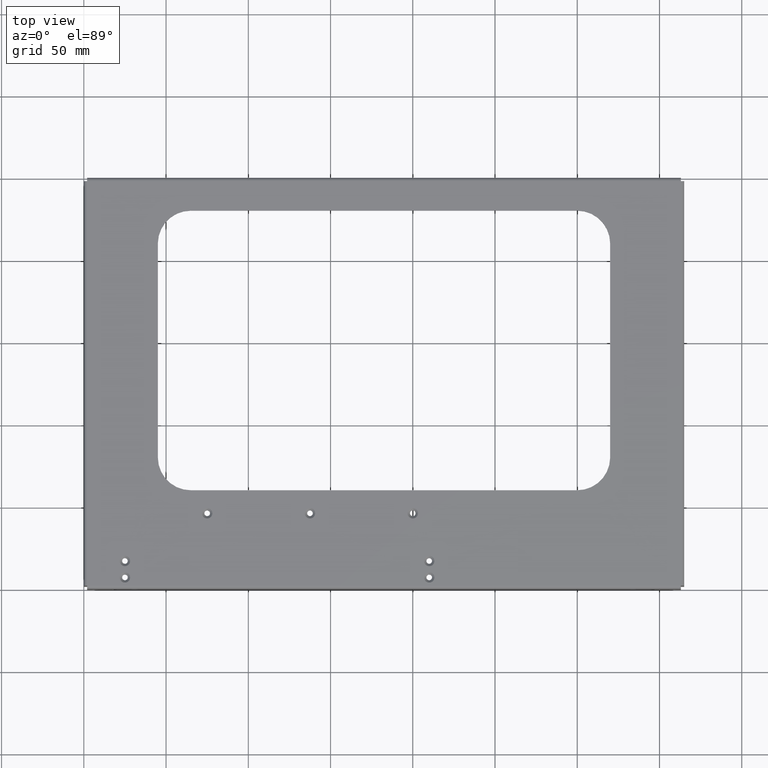
[diagram: clean part render]
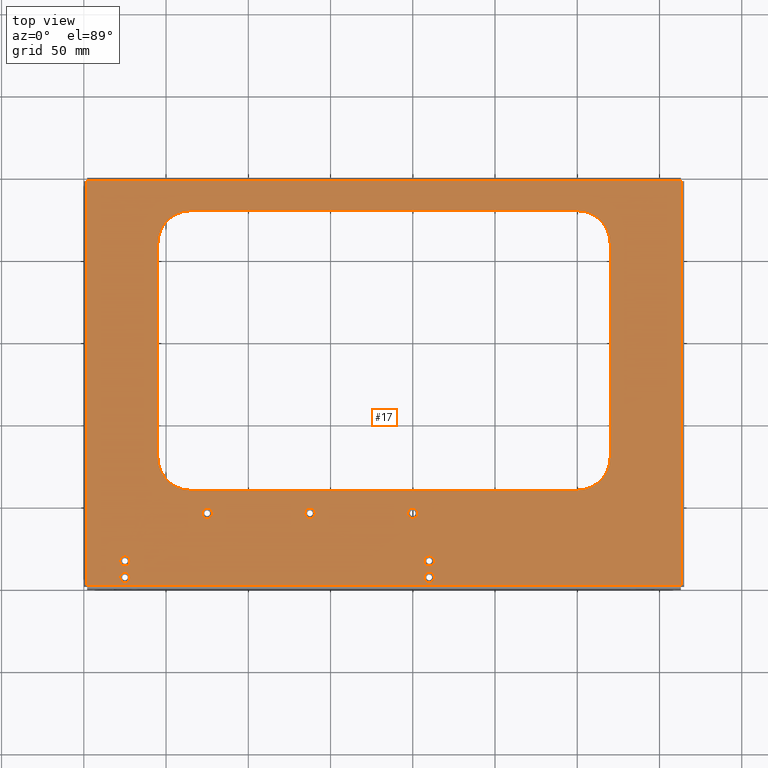
[diagram: same view with one face highlighted and labeled with its STEP entity id]
A machine part, top view. The second image highlights one B-rep face of the part: STEP entity #17.
In plain terms, the highlighted planar face has unit normal (0, 0, -1).
Its self-contained STEP definition (entity closure, byte-faithful):
#17 = ADVANCED_FACE('',(#18,#261,#583,#618,#653,#688,#723,#758,#793),#32
  ,.F.);
#18 = FACE_BOUND('',#19,.F.);
#19 = EDGE_LOOP('',(#20,#55,#88,#116,#149,#177,#206,#234));
#20 = ORIENTED_EDGE('',*,*,#21,.F.);
#21 = EDGE_CURVE('',#22,#24,#26,.T.);
#22 = VERTEX_POINT('',#23);
#23 = CARTESIAN_POINT('',(65.,230.,2.032));
#24 = VERTEX_POINT('',#25);
#25 = CARTESIAN_POINT('',(300.,230.,2.032));
#26 = SURFACE_CURVE('',#27,(#31,#43),.PCURVE_S1.);
#27 = LINE('',#28,#29);
#28 = CARTESIAN_POINT('',(45.,230.,2.032));
#29 = VECTOR('',#30,1.);
#30 = DIRECTION('',(1.,0.,0.));
#31 = PCURVE('',#32,#37);
#32 = PLANE('',#33);
#33 = AXIS2_PLACEMENT_3D('',#34,#35,#36);
#34 = CARTESIAN_POINT('',(0.,0.,2.032));
#35 = DIRECTION('',(0.,0.,-1.));
#36 = DIRECTION('',(-1.,0.,0.));
#37 = DEFINITIONAL_REPRESENTATION('',(#38),#42);
#38 = LINE('',#39,#40);
#39 = CARTESIAN_POINT('',(-45.,230.));
#40 = VECTOR('',#41,1.);
#41 = DIRECTION('',(-1.,0.));
#42 = ( GEOMETRIC_REPRESENTATION_CONTEXT(2) 
PARAMETRIC_REPRESENTATION_CONTEXT() REPRESENTATION_CONTEXT('2D SPACE',''
  ) );
#43 = PCURVE('',#44,#49);
#44 = PLANE('',#45);
#45 = AXIS2_PLACEMENT_3D('',#46,#47,#48);
#46 = CARTESIAN_POINT('',(45.,230.,0.));
#47 = DIRECTION('',(0.,1.,0.));
#48 = DIRECTION('',(1.,0.,0.));
#49 = DEFINITIONAL_REPRESENTATION('',(#50),#54);
#50 = LINE('',#51,#52);
#51 = CARTESIAN_POINT('',(0.,-2.032));
#52 = VECTOR('',#53,1.);
#53 = DIRECTION('',(1.,0.));
#54 = ( GEOMETRIC_REPRESENTATION_CONTEXT(2) 
PARAMETRIC_REPRESENTATION_CONTEXT() REPRESENTATION_CONTEXT('2D SPACE',''
  ) );
#55 = ORIENTED_EDGE('',*,*,#56,.T.);
#56 = EDGE_CURVE('',#22,#57,#59,.T.);
#57 = VERTEX_POINT('',#58);
#58 = CARTESIAN_POINT('',(45.,210.,2.032));
#59 = SURFACE_CURVE('',#60,(#65,#76),.PCURVE_S1.);
#60 = CIRCLE('',#61,20.);
#61 = AXIS2_PLACEMENT_3D('',#62,#63,#64);
#62 = CARTESIAN_POINT('',(65.,210.,2.032));
#63 = DIRECTION('',(-0.,0.,1.));
#64 = DIRECTION('',(0.,-1.,0.));
#65 = PCURVE('',#32,#66);
#66 = DEFINITIONAL_REPRESENTATION('',(#67),#75);
#67 = ( BOUNDED_CURVE() B_SPLINE_CURVE(2,(#68,#69,#70,#71,#72,#73,#74),
.UNSPECIFIED.,.T.,.F.) B_SPLINE_CURVE_WITH_KNOTS((1,2,2,2,2,1),(
    -2.094395102393,0.,2.094395102393,4.188790204786,6.28318530718,
8.377580409573),.UNSPECIFIED.) CURVE() GEOMETRIC_REPRESENTATION_ITEM() 
RATIONAL_B_SPLINE_CURVE((1.,0.5,1.,0.5,1.,0.5,1.)) REPRESENTATION_ITEM(
  '') );
#68 = CARTESIAN_POINT('',(-65.,190.));
#69 = CARTESIAN_POINT('',(-99.64101615137,190.));
#70 = CARTESIAN_POINT('',(-82.32050807568,220.));
#71 = CARTESIAN_POINT('',(-65.,250.));
#72 = CARTESIAN_POINT('',(-47.67949192431,220.));
#73 = CARTESIAN_POINT('',(-30.35898384862,190.));
#74 = CARTESIAN_POINT('',(-65.,190.));
#75 = ( GEOMETRIC_REPRESENTATION_CONTEXT(2) 
PARAMETRIC_REPRESENTATION_CONTEXT() REPRESENTATION_CONTEXT('2D SPACE',''
  ) );
#76 = PCURVE('',#77,#82);
#77 = CYLINDRICAL_SURFACE('',#78,20.);
#78 = AXIS2_PLACEMENT_3D('',#79,#80,#81);
#79 = CARTESIAN_POINT('',(65.,210.,0.));
#80 = DIRECTION('',(0.,0.,1.));
#81 = DIRECTION('',(0.,1.,0.));
#82 = DEFINITIONAL_REPRESENTATION('',(#83),#87);
#83 = LINE('',#84,#85);
#84 = CARTESIAN_POINT('',(-3.14159265359,2.032));
#85 = VECTOR('',#86,1.);
#86 = DIRECTION('',(1.,0.));
#87 = ( GEOMETRIC_REPRESENTATION_CONTEXT(2) 
PARAMETRIC_REPRESENTATION_CONTEXT() REPRESENTATION_CONTEXT('2D SPACE',''
  ) );
#88 = ORIENTED_EDGE('',*,*,#89,.F.);
#89 = EDGE_CURVE('',#90,#57,#92,.T.);
#90 = VERTEX_POINT('',#91);
#91 = CARTESIAN_POINT('',(45.,80.,2.032));
#92 = SURFACE_CURVE('',#93,(#97,#104),.PCURVE_S1.);
#93 = LINE('',#94,#95);
#94 = CARTESIAN_POINT('',(45.,60.,2.032));
#95 = VECTOR('',#96,1.);
#96 = DIRECTION('',(0.,1.,0.));
#97 = PCURVE('',#32,#98);
#98 = DEFINITIONAL_REPRESENTATION('',(#99),#103);
#99 = LINE('',#100,#101);
#100 = CARTESIAN_POINT('',(-45.,60.));
#101 = VECTOR('',#102,1.);
#102 = DIRECTION('',(0.,1.));
#103 = ( GEOMETRIC_REPRESENTATION_CONTEXT(2) 
PARAMETRIC_REPRESENTATION_CONTEXT() REPRESENTATION_CONTEXT('2D SPACE',''
  ) );
#104 = PCURVE('',#105,#110);
#105 = PLANE('',#106);
#106 = AXIS2_PLACEMENT_3D('',#107,#108,#109);
#107 = CARTESIAN_POINT('',(45.,60.,0.));
#108 = DIRECTION('',(-1.,0.,0.));
#109 = DIRECTION('',(0.,1.,0.));
#110 = DEFINITIONAL_REPRESENTATION('',(#111),#115);
#111 = LINE('',#112,#113);
#112 = CARTESIAN_POINT('',(0.,-2.032));
#113 = VECTOR('',#114,1.);
#114 = DIRECTION('',(1.,0.));
#115 = ( GEOMETRIC_REPRESENTATION_CONTEXT(2) 
PARAMETRIC_REPRESENTATION_CONTEXT() REPRESENTATION_CONTEXT('2D SPACE',''
  ) );
#116 = ORIENTED_EDGE('',*,*,#117,.T.);
#117 = EDGE_CURVE('',#90,#118,#120,.T.);
#118 = VERTEX_POINT('',#119);
#119 = CARTESIAN_POINT('',(65.,60.,2.032));
#120 = SURFACE_CURVE('',#121,(#126,#137),.PCURVE_S1.);
#121 = CIRCLE('',#122,20.);
#122 = AXIS2_PLACEMENT_3D('',#123,#124,#125);
#123 = CARTESIAN_POINT('',(65.,80.,2.032));
#124 = DIRECTION('',(-0.,0.,1.));
#125 = DIRECTION('',(0.,-1.,0.));
#126 = PCURVE('',#32,#127);
#127 = DEFINITIONAL_REPRESENTATION('',(#128),#136);
#128 = ( BOUNDED_CURVE() B_SPLINE_CURVE(2,(#129,#130,#131,#132,#133,#134
,#135),.UNSPECIFIED.,.T.,.F.) B_SPLINE_CURVE_WITH_KNOTS((1,2,2,2,2,1),(
    -2.094395102393,0.,2.094395102393,4.188790204786,6.28318530718,
8.377580409573),.UNSPECIFIED.) CURVE() GEOMETRIC_REPRESENTATION_ITEM() 
RATIONAL_B_SPLINE_CURVE((1.,0.5,1.,0.5,1.,0.5,1.)) REPRESENTATION_ITEM(
  '') );
#129 = CARTESIAN_POINT('',(-65.,60.));
#130 = CARTESIAN_POINT('',(-99.64101615137,60.));
#131 = CARTESIAN_POINT('',(-82.32050807568,90.));
#132 = CARTESIAN_POINT('',(-65.,120.));
#133 = CARTESIAN_POINT('',(-47.67949192431,90.));
#134 = CARTESIAN_POINT('',(-30.35898384862,60.));
#135 = CARTESIAN_POINT('',(-65.,60.));
#136 = ( GEOMETRIC_REPRESENTATION_CONTEXT(2) 
PARAMETRIC_REPRESENTATION_CONTEXT() REPRESENTATION_CONTEXT('2D SPACE',''
  ) );
#137 = PCURVE('',#138,#143);
#138 = CYLINDRICAL_SURFACE('',#139,20.);
#139 = AXIS2_PLACEMENT_3D('',#140,#141,#142);
#140 = CARTESIAN_POINT('',(65.,80.,0.));
#141 = DIRECTION('',(0.,0.,1.));
#142 = DIRECTION('',(-1.,0.,0.));
#143 = DEFINITIONAL_REPRESENTATION('',(#144),#148);
#144 = LINE('',#145,#146);
#145 = CARTESIAN_POINT('',(-4.712388980385,2.032));
#146 = VECTOR('',#147,1.);
#147 = DIRECTION('',(1.,0.));
#148 = ( GEOMETRIC_REPRESENTATION_CONTEXT(2) 
PARAMETRIC_REPRESENTATION_CONTEXT() REPRESENTATION_CONTEXT('2D SPACE',''
  ) );
#149 = ORIENTED_EDGE('',*,*,#150,.F.);
#150 = EDGE_CURVE('',#151,#118,#153,.T.);
#151 = VERTEX_POINT('',#152);
#152 = CARTESIAN_POINT('',(300.,60.,2.032));
#153 = SURFACE_CURVE('',#154,(#158,#165),.PCURVE_S1.);
#154 = LINE('',#155,#156);
#155 = CARTESIAN_POINT('',(320.,60.,2.032));
#156 = VECTOR('',#157,1.);
#157 = DIRECTION('',(-1.,0.,0.));
#158 = PCURVE('',#32,#159);
#159 = DEFINITIONAL_REPRESENTATION('',(#160),#164);
#160 = LINE('',#161,#162);
#161 = CARTESIAN_POINT('',(-320.,60.));
#162 = VECTOR('',#163,1.);
#163 = DIRECTION('',(1.,0.));
#164 = ( GEOMETRIC_REPRESENTATION_CONTEXT(2) 
PARAMETRIC_REPRESENTATION_CONTEXT() REPRESENTATION_CONTEXT('2D SPACE',''
  ) );
#165 = PCURVE('',#166,#171);
#166 = PLANE('',#167);
#167 = AXIS2_PLACEMENT_3D('',#168,#169,#170);
#168 = CARTESIAN_POINT('',(320.,60.,0.));
#169 = DIRECTION('',(0.,-1.,0.));
#170 = DIRECTION('',(-1.,0.,0.));
#171 = DEFINITIONAL_REPRESENTATION('',(#172),#176);
#172 = LINE('',#173,#174);
#173 = CARTESIAN_POINT('',(0.,-2.032));
#174 = VECTOR('',#175,1.);
#175 = DIRECTION('',(1.,0.));
#176 = ( GEOMETRIC_REPRESENTATION_CONTEXT(2) 
PARAMETRIC_REPRESENTATION_CONTEXT() REPRESENTATION_CONTEXT('2D SPACE',''
  ) );
#177 = ORIENTED_EDGE('',*,*,#178,.F.);
#178 = EDGE_CURVE('',#179,#151,#181,.T.);
#179 = VERTEX_POINT('',#180);
#180 = CARTESIAN_POINT('',(320.,80.,2.032));
#181 = SURFACE_CURVE('',#182,(#187,#194),.PCURVE_S1.);
#182 = CIRCLE('',#183,20.);
#183 = AXIS2_PLACEMENT_3D('',#184,#185,#186);
#184 = CARTESIAN_POINT('',(300.,80.,2.032));
#185 = DIRECTION('',(-0.,-0.,-1.));
#186 = DIRECTION('',(0.,-1.,0.));
#187 = PCURVE('',#32,#188);
#188 = DEFINITIONAL_REPRESENTATION('',(#189),#193);
#189 = CIRCLE('',#190,20.);
#190 = AXIS2_PLACEMENT_2D('',#191,#192);
#191 = CARTESIAN_POINT('',(-300.,80.));
#192 = DIRECTION('',(0.,-1.));
#193 = ( GEOMETRIC_REPRESENTATION_CONTEXT(2) 
PARAMETRIC_REPRESENTATION_CONTEXT() REPRESENTATION_CONTEXT('2D SPACE',''
  ) );
#194 = PCURVE('',#195,#200);
#195 = CYLINDRICAL_SURFACE('',#196,20.);
#196 = AXIS2_PLACEMENT_3D('',#197,#198,#199);
#197 = CARTESIAN_POINT('',(300.,80.,0.));
#198 = DIRECTION('',(0.,0.,1.));
#199 = DIRECTION('',(1.,0.,0.));
#200 = DEFINITIONAL_REPRESENTATION('',(#201),#205);
#201 = LINE('',#202,#203);
#202 = CARTESIAN_POINT('',(4.712388980385,2.032));
#203 = VECTOR('',#204,1.);
#204 = DIRECTION('',(-1.,0.));
#205 = ( GEOMETRIC_REPRESENTATION_CONTEXT(2) 
PARAMETRIC_REPRESENTATION_CONTEXT() REPRESENTATION_CONTEXT('2D SPACE',''
  ) );
#206 = ORIENTED_EDGE('',*,*,#207,.F.);
#207 = EDGE_CURVE('',#208,#179,#210,.T.);
#208 = VERTEX_POINT('',#209);
#209 = CARTESIAN_POINT('',(320.,210.,2.032));
#210 = SURFACE_CURVE('',#211,(#215,#222),.PCURVE_S1.);
#211 = LINE('',#212,#213);
#212 = CARTESIAN_POINT('',(320.,230.,2.032));
#213 = VECTOR('',#214,1.);
#214 = DIRECTION('',(0.,-1.,0.));
#215 = PCURVE('',#32,#216);
#216 = DEFINITIONAL_REPRESENTATION('',(#217),#221);
#217 = LINE('',#218,#219);
#218 = CARTESIAN_POINT('',(-320.,230.));
#219 = VECTOR('',#220,1.);
#220 = DIRECTION('',(0.,-1.));
#221 = ( GEOMETRIC_REPRESENTATION_CONTEXT(2) 
PARAMETRIC_REPRESENTATION_CONTEXT() REPRESENTATION_CONTEXT('2D SPACE',''
  ) );
#222 = PCURVE('',#223,#228);
#223 = PLANE('',#224);
#224 = AXIS2_PLACEMENT_3D('',#225,#226,#227);
#225 = CARTESIAN_POINT('',(320.,230.,0.));
#226 = DIRECTION('',(1.,0.,0.));
#227 = DIRECTION('',(0.,-1.,0.));
#228 = DEFINITIONAL_REPRESENTATION('',(#229),#233);
#229 = LINE('',#230,#231);
#230 = CARTESIAN_POINT('',(0.,-2.032));
#231 = VECTOR('',#232,1.);
#232 = DIRECTION('',(1.,0.));
#233 = ( GEOMETRIC_REPRESENTATION_CONTEXT(2) 
PARAMETRIC_REPRESENTATION_CONTEXT() REPRESENTATION_CONTEXT('2D SPACE',''
  ) );
#234 = ORIENTED_EDGE('',*,*,#235,.F.);
#235 = EDGE_CURVE('',#24,#208,#236,.T.);
#236 = SURFACE_CURVE('',#237,(#242,#249),.PCURVE_S1.);
#237 = CIRCLE('',#238,20.);
#238 = AXIS2_PLACEMENT_3D('',#239,#240,#241);
#239 = CARTESIAN_POINT('',(300.,210.,2.032));
#240 = DIRECTION('',(-0.,-0.,-1.));
#241 = DIRECTION('',(0.,-1.,0.));
#242 = PCURVE('',#32,#243);
#243 = DEFINITIONAL_REPRESENTATION('',(#244),#248);
#244 = CIRCLE('',#245,20.);
#245 = AXIS2_PLACEMENT_2D('',#246,#247);
#246 = CARTESIAN_POINT('',(-300.,210.));
#247 = DIRECTION('',(0.,-1.));
#248 = ( GEOMETRIC_REPRESENTATION_CONTEXT(2) 
PARAMETRIC_REPRESENTATION_CONTEXT() REPRESENTATION_CONTEXT('2D SPACE',''
  ) );
#249 = PCURVE('',#250,#255);
#250 = CYLINDRICAL_SURFACE('',#251,20.);
#251 = AXIS2_PLACEMENT_3D('',#252,#253,#254);
#252 = CARTESIAN_POINT('',(300.,210.,0.));
#253 = DIRECTION('',(0.,0.,1.));
#254 = DIRECTION('',(0.,1.,0.));
#255 = DEFINITIONAL_REPRESENTATION('',(#256),#260);
#256 = LINE('',#257,#258);
#257 = CARTESIAN_POINT('',(3.14159265359,2.032));
#258 = VECTOR('',#259,1.);
#259 = DIRECTION('',(-1.,0.));
#260 = ( GEOMETRIC_REPRESENTATION_CONTEXT(2) 
PARAMETRIC_REPRESENTATION_CONTEXT() REPRESENTATION_CONTEXT('2D SPACE',''
  ) );
#261 = FACE_BOUND('',#262,.F.);
#262 = EDGE_LOOP('',(#263,#291,#319,#345,#371,#399,#425,#451,#479,#505,
    #531,#559));
#263 = ORIENTED_EDGE('',*,*,#264,.F.);
#264 = EDGE_CURVE('',#265,#267,#269,.T.);
#265 = VERTEX_POINT('',#266);
#266 = CARTESIAN_POINT('',(362.968,2.,2.032));
#267 = VERTEX_POINT('',#268);
#268 = CARTESIAN_POINT('',(362.968,2.032,2.032));
#269 = SURFACE_CURVE('',#270,(#274,#280),.PCURVE_S1.);
#270 = LINE('',#271,#272);
#271 = CARTESIAN_POINT('',(362.968,0.,2.032));
#272 = VECTOR('',#273,1.);
#273 = DIRECTION('',(0.,1.,0.));
#274 = PCURVE('',#32,#275);
#275 = DEFINITIONAL_REPRESENTATION('',(#276),#279);
#276 = B_SPLINE_CURVE_WITH_KNOTS('',1,(#277,#278),.UNSPECIFIED.,.F.,.F.,
  (2,2),(-0.2032,2.2352),.PIECEWISE_BEZIER_KNOTS.);
#277 = CARTESIAN_POINT('',(-362.968,-0.2032));
#278 = CARTESIAN_POINT('',(-362.968,2.2352));
#279 = ( GEOMETRIC_REPRESENTATION_CONTEXT(2) 
PARAMETRIC_REPRESENTATION_CONTEXT() REPRESENTATION_CONTEXT('2D SPACE',''
  ) );
#280 = PCURVE('',#281,#286);
#281 = PLANE('',#282);
#282 = AXIS2_PLACEMENT_3D('',#283,#284,#285);
#283 = CARTESIAN_POINT('',(362.968,0.,0.));
#284 = DIRECTION('',(-1.,0.,0.));
#285 = DIRECTION('',(0.,1.,0.));
#286 = DEFINITIONAL_REPRESENTATION('',(#287),#290);
#287 = B_SPLINE_CURVE_WITH_KNOTS('',1,(#288,#289),.UNSPECIFIED.,.F.,.F.,
  (2,2),(-0.2032,2.2352),.PIECEWISE_BEZIER_KNOTS.);
#288 = CARTESIAN_POINT('',(-0.2032,-2.032));
#289 = CARTESIAN_POINT('',(2.2352,-2.032));
#290 = ( GEOMETRIC_REPRESENTATION_CONTEXT(2) 
PARAMETRIC_REPRESENTATION_CONTEXT() REPRESENTATION_CONTEXT('2D SPACE',''
  ) );
#291 = ORIENTED_EDGE('',*,*,#292,.F.);
#292 = EDGE_CURVE('',#293,#265,#295,.T.);
#293 = VERTEX_POINT('',#294);
#294 = CARTESIAN_POINT('',(2.032,2.,2.032));
#295 = SURFACE_CURVE('',#296,(#300,#307),.PCURVE_S1.);
#296 = LINE('',#297,#298);
#297 = CARTESIAN_POINT('',(2.032,2.,2.032));
#298 = VECTOR('',#299,1.);
#299 = DIRECTION('',(1.,0.,0.));
#300 = PCURVE('',#32,#301);
#301 = DEFINITIONAL_REPRESENTATION('',(#302),#306);
#302 = LINE('',#303,#304);
#303 = CARTESIAN_POINT('',(-2.032,2.));
#304 = VECTOR('',#305,1.);
#305 = DIRECTION('',(-1.,0.));
#306 = ( GEOMETRIC_REPRESENTATION_CONTEXT(2) 
PARAMETRIC_REPRESENTATION_CONTEXT() REPRESENTATION_CONTEXT('2D SPACE',''
  ) );
#307 = PCURVE('',#308,#313);
#308 = CYLINDRICAL_SURFACE('',#309,2.);
#309 = AXIS2_PLACEMENT_3D('',#310,#311,#312);
#310 = CARTESIAN_POINT('',(2.032,2.,3.2E-02));
#311 = DIRECTION('',(1.,0.,0.));
#312 = DIRECTION('',(0.,0.,1.));
#313 = DEFINITIONAL_REPRESENTATION('',(#314),#318);
#314 = LINE('',#315,#316);
#315 = CARTESIAN_POINT('',(0.,0.));
#316 = VECTOR('',#317,1.);
#317 = DIRECTION('',(0.,1.));
#318 = ( GEOMETRIC_REPRESENTATION_CONTEXT(2) 
PARAMETRIC_REPRESENTATION_CONTEXT() REPRESENTATION_CONTEXT('2D SPACE',''
  ) );
#319 = ORIENTED_EDGE('',*,*,#320,.T.);
#320 = EDGE_CURVE('',#293,#321,#323,.T.);
#321 = VERTEX_POINT('',#322);
#322 = CARTESIAN_POINT('',(2.032,2.032,2.032));
#323 = SURFACE_CURVE('',#324,(#328,#334),.PCURVE_S1.);
#324 = LINE('',#325,#326);
#325 = CARTESIAN_POINT('',(2.032,0.,2.032));
#326 = VECTOR('',#327,1.);
#327 = DIRECTION('',(0.,1.,0.));
#328 = PCURVE('',#32,#329);
#329 = DEFINITIONAL_REPRESENTATION('',(#330),#333);
#330 = B_SPLINE_CURVE_WITH_KNOTS('',1,(#331,#332),.UNSPECIFIED.,.F.,.F.,
  (2,2),(-0.2032,2.2352),.PIECEWISE_BEZIER_KNOTS.);
#331 = CARTESIAN_POINT('',(-2.032,-0.2032));
#332 = CARTESIAN_POINT('',(-2.032,2.2352));
#333 = ( GEOMETRIC_REPRESENTATION_CONTEXT(2) 
PARAMETRIC_REPRESENTATION_CONTEXT() REPRESENTATION_CONTEXT('2D SPACE',''
  ) );
#334 = PCURVE('',#335,#340);
#335 = PLANE('',#336);
#336 = AXIS2_PLACEMENT_3D('',#337,#338,#339);
#337 = CARTESIAN_POINT('',(2.032,0.,0.));
#338 = DIRECTION('',(-1.,0.,0.));
#339 = DIRECTION('',(0.,1.,0.));
#340 = DEFINITIONAL_REPRESENTATION('',(#341),#344);
#341 = B_SPLINE_CURVE_WITH_KNOTS('',1,(#342,#343),.UNSPECIFIED.,.F.,.F.,
  (2,2),(-0.2032,2.2352),.PIECEWISE_BEZIER_KNOTS.);
#342 = CARTESIAN_POINT('',(-0.2032,-2.032));
#343 = CARTESIAN_POINT('',(2.2352,-2.032));
#344 = ( GEOMETRIC_REPRESENTATION_CONTEXT(2) 
PARAMETRIC_REPRESENTATION_CONTEXT() REPRESENTATION_CONTEXT('2D SPACE',''
  ) );
#345 = ORIENTED_EDGE('',*,*,#346,.T.);
#346 = EDGE_CURVE('',#321,#347,#349,.T.);
#347 = VERTEX_POINT('',#348);
#348 = CARTESIAN_POINT('',(2.,2.032,2.032));
#349 = SURFACE_CURVE('',#350,(#354,#360),.PCURVE_S1.);
#350 = LINE('',#351,#352);
#351 = CARTESIAN_POINT('',(1.016,2.032,2.032));
#352 = VECTOR('',#353,1.);
#353 = DIRECTION('',(-1.,-0.,-0.));
#354 = PCURVE('',#32,#355);
#355 = DEFINITIONAL_REPRESENTATION('',(#356),#359);
#356 = B_SPLINE_CURVE_WITH_KNOTS('',1,(#357,#358),.UNSPECIFIED.,.F.,.F.,
  (2,2),(-1.2192,1.2192),.PIECEWISE_BEZIER_KNOTS.);
#357 = CARTESIAN_POINT('',(-2.2352,2.032));
#358 = CARTESIAN_POINT('',(0.2032,2.032));
#359 = ( GEOMETRIC_REPRESENTATION_CONTEXT(2) 
PARAMETRIC_REPRESENTATION_CONTEXT() REPRESENTATION_CONTEXT('2D SPACE',''
  ) );
#360 = PCURVE('',#361,#366);
#361 = PLANE('',#362);
#362 = AXIS2_PLACEMENT_3D('',#363,#364,#365);
#363 = CARTESIAN_POINT('',(2.032,2.032,0.));
#364 = DIRECTION('',(0.,-1.,0.));
#365 = DIRECTION('',(-1.,0.,0.));
#366 = DEFINITIONAL_REPRESENTATION('',(#367),#370);
#367 = B_SPLINE_CURVE_WITH_KNOTS('',1,(#368,#369),.UNSPECIFIED.,.F.,.F.,
  (2,2),(-1.2192,1.2192),.PIECEWISE_BEZIER_KNOTS.);
#368 = CARTESIAN_POINT('',(-0.2032,-2.032));
#369 = CARTESIAN_POINT('',(2.2352,-2.032));
#370 = ( GEOMETRIC_REPRESENTATION_CONTEXT(2) 
PARAMETRIC_REPRESENTATION_CONTEXT() REPRESENTATION_CONTEXT('2D SPACE',''
  ) );
#371 = ORIENTED_EDGE('',*,*,#372,.F.);
#372 = EDGE_CURVE('',#373,#347,#375,.T.);
#373 = VERTEX_POINT('',#374);
#374 = CARTESIAN_POINT('',(2.,247.968,2.032));
#375 = SURFACE_CURVE('',#376,(#380,#387),.PCURVE_S1.);
#376 = LINE('',#377,#378);
#377 = CARTESIAN_POINT('',(2.,247.968,2.032));
#378 = VECTOR('',#379,1.);
#379 = DIRECTION('',(0.,-1.,0.));
#380 = PCURVE('',#32,#381);
#381 = DEFINITIONAL_REPRESENTATION('',(#382),#386);
#382 = LINE('',#383,#384);
#383 = CARTESIAN_POINT('',(-2.,247.968));
#384 = VECTOR('',#385,1.);
#385 = DIRECTION('',(0.,-1.));
#386 = ( GEOMETRIC_REPRESENTATION_CONTEXT(2) 
PARAMETRIC_REPRESENTATION_CONTEXT() REPRESENTATION_CONTEXT('2D SPACE',''
  ) );
#387 = PCURVE('',#388,#393);
#388 = CYLINDRICAL_SURFACE('',#389,2.);
#389 = AXIS2_PLACEMENT_3D('',#390,#391,#392);
#390 = CARTESIAN_POINT('',(2.,247.968,3.2E-02));
#391 = DIRECTION('',(0.,-1.,0.));
#392 = DIRECTION('',(0.,0.,1.));
#393 = DEFINITIONAL_REPRESENTATION('',(#394),#398);
#394 = LINE('',#395,#396);
#395 = CARTESIAN_POINT('',(0.,0.));
#396 = VECTOR('',#397,1.);
#397 = DIRECTION('',(0.,1.));
#398 = ( GEOMETRIC_REPRESENTATION_CONTEXT(2) 
PARAMETRIC_REPRESENTATION_CONTEXT() REPRESENTATION_CONTEXT('2D SPACE',''
  ) );
#399 = ORIENTED_EDGE('',*,*,#400,.F.);
#400 = EDGE_CURVE('',#401,#373,#403,.T.);
#401 = VERTEX_POINT('',#402);
#402 = CARTESIAN_POINT('',(2.032,247.968,2.032));
#403 = SURFACE_CURVE('',#404,(#408,#414),.PCURVE_S1.);
#404 = LINE('',#405,#406);
#405 = CARTESIAN_POINT('',(1.016,247.968,2.032));
#406 = VECTOR('',#407,1.);
#407 = DIRECTION('',(-1.,-0.,-0.));
#408 = PCURVE('',#32,#409);
#409 = DEFINITIONAL_REPRESENTATION('',(#410),#413);
#410 = B_SPLINE_CURVE_WITH_KNOTS('',1,(#411,#412),.UNSPECIFIED.,.F.,.F.,
  (2,2),(-1.2192,1.2192),.PIECEWISE_BEZIER_KNOTS.);
#411 = CARTESIAN_POINT('',(-2.2352,247.968));
#412 = CARTESIAN_POINT('',(0.2032,247.968));
#413 = ( GEOMETRIC_REPRESENTATION_CONTEXT(2) 
PARAMETRIC_REPRESENTATION_CONTEXT() REPRESENTATION_CONTEXT('2D SPACE',''
  ) );
#414 = PCURVE('',#415,#420);
#415 = PLANE('',#416);
#416 = AXIS2_PLACEMENT_3D('',#417,#418,#419);
#417 = CARTESIAN_POINT('',(2.032,247.968,0.));
#418 = DIRECTION('',(0.,-1.,0.));
#419 = DIRECTION('',(-1.,0.,0.));
#420 = DEFINITIONAL_REPRESENTATION('',(#421),#424);
#421 = B_SPLINE_CURVE_WITH_KNOTS('',1,(#422,#423),.UNSPECIFIED.,.F.,.F.,
  (2,2),(-1.2192,1.2192),.PIECEWISE_BEZIER_KNOTS.);
#422 = CARTESIAN_POINT('',(-0.2032,-2.032));
#423 = CARTESIAN_POINT('',(2.2352,-2.032));
#424 = ( GEOMETRIC_REPRESENTATION_CONTEXT(2) 
PARAMETRIC_REPRESENTATION_CONTEXT() REPRESENTATION_CONTEXT('2D SPACE',''
  ) );
#425 = ORIENTED_EDGE('',*,*,#426,.F.);
#426 = EDGE_CURVE('',#427,#401,#429,.T.);
#427 = VERTEX_POINT('',#428);
#428 = CARTESIAN_POINT('',(2.032,248.,2.032));
#429 = SURFACE_CURVE('',#430,(#434,#440),.PCURVE_S1.);
#430 = LINE('',#431,#432);
#431 = CARTESIAN_POINT('',(2.032,125.,2.032));
#432 = VECTOR('',#433,1.);
#433 = DIRECTION('',(0.,-1.,0.));
#434 = PCURVE('',#32,#435);
#435 = DEFINITIONAL_REPRESENTATION('',(#436),#439);
#436 = B_SPLINE_CURVE_WITH_KNOTS('',1,(#437,#438),.UNSPECIFIED.,.F.,.F.,
  (2,2),(-125.2032,-122.7648),.PIECEWISE_BEZIER_KNOTS.);
#437 = CARTESIAN_POINT('',(-2.032,250.2032));
#438 = CARTESIAN_POINT('',(-2.032,247.7648));
#439 = ( GEOMETRIC_REPRESENTATION_CONTEXT(2) 
PARAMETRIC_REPRESENTATION_CONTEXT() REPRESENTATION_CONTEXT('2D SPACE',''
  ) );
#440 = PCURVE('',#441,#446);
#441 = PLANE('',#442);
#442 = AXIS2_PLACEMENT_3D('',#443,#444,#445);
#443 = CARTESIAN_POINT('',(2.032,250.,0.));
#444 = DIRECTION('',(1.,0.,0.));
#445 = DIRECTION('',(0.,-1.,0.));
#446 = DEFINITIONAL_REPRESENTATION('',(#447),#450);
#447 = B_SPLINE_CURVE_WITH_KNOTS('',1,(#448,#449),.UNSPECIFIED.,.F.,.F.,
  (2,2),(-125.2032,-122.7648),.PIECEWISE_BEZIER_KNOTS.);
#448 = CARTESIAN_POINT('',(-0.2032,-2.032));
#449 = CARTESIAN_POINT('',(2.2352,-2.032));
#450 = ( GEOMETRIC_REPRESENTATION_CONTEXT(2) 
PARAMETRIC_REPRESENTATION_CONTEXT() REPRESENTATION_CONTEXT('2D SPACE',''
  ) );
#451 = ORIENTED_EDGE('',*,*,#452,.F.);
#452 = EDGE_CURVE('',#453,#427,#455,.T.);
#453 = VERTEX_POINT('',#454);
#454 = CARTESIAN_POINT('',(362.968,248.,2.032));
#455 = SURFACE_CURVE('',#456,(#460,#467),.PCURVE_S1.);
#456 = LINE('',#457,#458);
#457 = CARTESIAN_POINT('',(362.968,248.,2.032));
#458 = VECTOR('',#459,1.);
#459 = DIRECTION('',(-1.,0.,0.));
#460 = PCURVE('',#32,#461);
#461 = DEFINITIONAL_REPRESENTATION('',(#462),#466);
#462 = LINE('',#463,#464);
#463 = CARTESIAN_POINT('',(-362.968,248.));
#464 = VECTOR('',#465,1.);
#465 = DIRECTION('',(1.,0.));
#466 = ( GEOMETRIC_REPRESENTATION_CONTEXT(2) 
PARAMETRIC_REPRESENTATION_CONTEXT() REPRESENTATION_CONTEXT('2D SPACE',''
  ) );
#467 = PCURVE('',#468,#473);
#468 = CYLINDRICAL_SURFACE('',#469,2.);
#469 = AXIS2_PLACEMENT_3D('',#470,#471,#472);
#470 = CARTESIAN_POINT('',(362.968,248.,3.2E-02));
#471 = DIRECTION('',(-1.,0.,0.));
#472 = DIRECTION('',(0.,0.,1.));
#473 = DEFINITIONAL_REPRESENTATION('',(#474),#478);
#474 = LINE('',#475,#476);
#475 = CARTESIAN_POINT('',(0.,0.));
#476 = VECTOR('',#477,1.);
#477 = DIRECTION('',(0.,1.));
#478 = ( GEOMETRIC_REPRESENTATION_CONTEXT(2) 
PARAMETRIC_REPRESENTATION_CONTEXT() REPRESENTATION_CONTEXT('2D SPACE',''
  ) );
#479 = ORIENTED_EDGE('',*,*,#480,.T.);
#480 = EDGE_CURVE('',#453,#481,#483,.T.);
#481 = VERTEX_POINT('',#482);
#482 = CARTESIAN_POINT('',(362.968,247.968,2.032));
#483 = SURFACE_CURVE('',#484,(#488,#494),.PCURVE_S1.);
#484 = LINE('',#485,#486);
#485 = CARTESIAN_POINT('',(362.968,125.,2.032));
#486 = VECTOR('',#487,1.);
#487 = DIRECTION('',(0.,-1.,0.));
#488 = PCURVE('',#32,#489);
#489 = DEFINITIONAL_REPRESENTATION('',(#490),#493);
#490 = B_SPLINE_CURVE_WITH_KNOTS('',1,(#491,#492),.UNSPECIFIED.,.F.,.F.,
  (2,2),(-125.2032,-122.7648),.PIECEWISE_BEZIER_KNOTS.);
#491 = CARTESIAN_POINT('',(-362.968,250.2032));
#492 = CARTESIAN_POINT('',(-362.968,247.7648));
#493 = ( GEOMETRIC_REPRESENTATION_CONTEXT(2) 
PARAMETRIC_REPRESENTATION_CONTEXT() REPRESENTATION_CONTEXT('2D SPACE',''
  ) );
#494 = PCURVE('',#495,#500);
#495 = PLANE('',#496);
#496 = AXIS2_PLACEMENT_3D('',#497,#498,#499);
#497 = CARTESIAN_POINT('',(362.968,250.,0.));
#498 = DIRECTION('',(1.,0.,0.));
#499 = DIRECTION('',(0.,-1.,0.));
#500 = DEFINITIONAL_REPRESENTATION('',(#501),#504);
#501 = B_SPLINE_CURVE_WITH_KNOTS('',1,(#502,#503),.UNSPECIFIED.,.F.,.F.,
  (2,2),(-125.2032,-122.7648),.PIECEWISE_BEZIER_KNOTS.);
#502 = CARTESIAN_POINT('',(-0.2032,-2.032));
#503 = CARTESIAN_POINT('',(2.2352,-2.032));
#504 = ( GEOMETRIC_REPRESENTATION_CONTEXT(2) 
PARAMETRIC_REPRESENTATION_CONTEXT() REPRESENTATION_CONTEXT('2D SPACE',''
  ) );
#505 = ORIENTED_EDGE('',*,*,#506,.T.);
#506 = EDGE_CURVE('',#481,#507,#509,.T.);
#507 = VERTEX_POINT('',#508);
#508 = CARTESIAN_POINT('',(363.,247.968,2.032));
#509 = SURFACE_CURVE('',#510,(#514,#520),.PCURVE_S1.);
#510 = LINE('',#511,#512);
#511 = CARTESIAN_POINT('',(181.484,247.968,2.032));
#512 = VECTOR('',#513,1.);
#513 = DIRECTION('',(1.,0.,0.));
#514 = PCURVE('',#32,#515);
#515 = DEFINITIONAL_REPRESENTATION('',(#516),#519);
#516 = B_SPLINE_CURVE_WITH_KNOTS('',1,(#517,#518),.UNSPECIFIED.,.F.,.F.,
  (2,2),(181.2808,183.7192),.PIECEWISE_BEZIER_KNOTS.);
#517 = CARTESIAN_POINT('',(-362.7648,247.968));
#518 = CARTESIAN_POINT('',(-365.2032,247.968));
#519 = ( GEOMETRIC_REPRESENTATION_CONTEXT(2) 
PARAMETRIC_REPRESENTATION_CONTEXT() REPRESENTATION_CONTEXT('2D SPACE',''
  ) );
#520 = PCURVE('',#521,#526);
#521 = PLANE('',#522);
#522 = AXIS2_PLACEMENT_3D('',#523,#524,#525);
#523 = CARTESIAN_POINT('',(362.968,247.968,0.));
#524 = DIRECTION('',(0.,1.,0.));
#525 = DIRECTION('',(1.,0.,0.));
#526 = DEFINITIONAL_REPRESENTATION('',(#527),#530);
#527 = B_SPLINE_CURVE_WITH_KNOTS('',1,(#528,#529),.UNSPECIFIED.,.F.,.F.,
  (2,2),(181.2808,183.7192),.PIECEWISE_BEZIER_KNOTS.);
#528 = CARTESIAN_POINT('',(-0.2032,-2.032));
#529 = CARTESIAN_POINT('',(2.2352,-2.032));
#530 = ( GEOMETRIC_REPRESENTATION_CONTEXT(2) 
PARAMETRIC_REPRESENTATION_CONTEXT() REPRESENTATION_CONTEXT('2D SPACE',''
  ) );
#531 = ORIENTED_EDGE('',*,*,#532,.F.);
#532 = EDGE_CURVE('',#533,#507,#535,.T.);
#533 = VERTEX_POINT('',#534);
#534 = CARTESIAN_POINT('',(363.,2.032,2.032));
#535 = SURFACE_CURVE('',#536,(#540,#547),.PCURVE_S1.);
#536 = LINE('',#537,#538);
#537 = CARTESIAN_POINT('',(363.,2.032,2.032));
#538 = VECTOR('',#539,1.);
#539 = DIRECTION('',(0.,1.,0.));
#540 = PCURVE('',#32,#541);
#541 = DEFINITIONAL_REPRESENTATION('',(#542),#546);
#542 = LINE('',#543,#544);
#543 = CARTESIAN_POINT('',(-363.,2.032));
#544 = VECTOR('',#545,1.);
#545 = DIRECTION('',(0.,1.));
#546 = ( GEOMETRIC_REPRESENTATION_CONTEXT(2) 
PARAMETRIC_REPRESENTATION_CONTEXT() REPRESENTATION_CONTEXT('2D SPACE',''
  ) );
#547 = PCURVE('',#548,#553);
#548 = CYLINDRICAL_SURFACE('',#549,2.);
#549 = AXIS2_PLACEMENT_3D('',#550,#551,#552);
#550 = CARTESIAN_POINT('',(363.,2.032,3.2E-02));
#551 = DIRECTION('',(0.,1.,0.));
#552 = DIRECTION('',(0.,0.,1.));
#553 = DEFINITIONAL_REPRESENTATION('',(#554),#558);
#554 = LINE('',#555,#556);
#555 = CARTESIAN_POINT('',(0.,0.));
#556 = VECTOR('',#557,1.);
#557 = DIRECTION('',(0.,1.));
#558 = ( GEOMETRIC_REPRESENTATION_CONTEXT(2) 
PARAMETRIC_REPRESENTATION_CONTEXT() REPRESENTATION_CONTEXT('2D SPACE',''
  ) );
#559 = ORIENTED_EDGE('',*,*,#560,.F.);
#560 = EDGE_CURVE('',#267,#533,#561,.T.);
#561 = SURFACE_CURVE('',#562,(#566,#572),.PCURVE_S1.);
#562 = LINE('',#563,#564);
#563 = CARTESIAN_POINT('',(181.484,2.032,2.032));
#564 = VECTOR('',#565,1.);
#565 = DIRECTION('',(1.,0.,0.));
#566 = PCURVE('',#32,#567);
#567 = DEFINITIONAL_REPRESENTATION('',(#568),#571);
#568 = B_SPLINE_CURVE_WITH_KNOTS('',1,(#569,#570),.UNSPECIFIED.,.F.,.F.,
  (2,2),(181.2808,183.7192),.PIECEWISE_BEZIER_KNOTS.);
#569 = CARTESIAN_POINT('',(-362.7648,2.032));
#570 = CARTESIAN_POINT('',(-365.2032,2.032));
#571 = ( GEOMETRIC_REPRESENTATION_CONTEXT(2) 
PARAMETRIC_REPRESENTATION_CONTEXT() REPRESENTATION_CONTEXT('2D SPACE',''
  ) );
#572 = PCURVE('',#573,#578);
#573 = PLANE('',#574);
#574 = AXIS2_PLACEMENT_3D('',#575,#576,#577);
#575 = CARTESIAN_POINT('',(362.968,2.032,0.));
#576 = DIRECTION('',(0.,1.,0.));
#577 = DIRECTION('',(1.,0.,0.));
#578 = DEFINITIONAL_REPRESENTATION('',(#579),#582);
#579 = B_SPLINE_CURVE_WITH_KNOTS('',1,(#580,#581),.UNSPECIFIED.,.F.,.F.,
  (2,2),(181.2808,183.7192),.PIECEWISE_BEZIER_KNOTS.);
#580 = CARTESIAN_POINT('',(-0.2032,-2.032));
#581 = CARTESIAN_POINT('',(2.2352,-2.032));
#582 = ( GEOMETRIC_REPRESENTATION_CONTEXT(2) 
PARAMETRIC_REPRESENTATION_CONTEXT() REPRESENTATION_CONTEXT('2D SPACE',''
  ) );
#583 = FACE_BOUND('',#584,.F.);
#584 = EDGE_LOOP('',(#585));
#585 = ORIENTED_EDGE('',*,*,#586,.T.);
#586 = EDGE_CURVE('',#587,#587,#589,.T.);
#587 = VERTEX_POINT('',#588);
#588 = CARTESIAN_POINT('',(28.15,17.,2.032));
#589 = SURFACE_CURVE('',#590,(#595,#606),.PCURVE_S1.);
#590 = CIRCLE('',#591,3.15);
#591 = AXIS2_PLACEMENT_3D('',#592,#593,#594);
#592 = CARTESIAN_POINT('',(25.,17.,2.032));
#593 = DIRECTION('',(0.,0.,1.));
#594 = DIRECTION('',(1.,0.,0.));
#595 = PCURVE('',#32,#596);
#596 = DEFINITIONAL_REPRESENTATION('',(#597),#605);
#597 = ( BOUNDED_CURVE() B_SPLINE_CURVE(2,(#598,#599,#600,#601,#602,#603
,#604),.UNSPECIFIED.,.T.,.F.) B_SPLINE_CURVE_WITH_KNOTS((1,2,2,2,2,1),(
    -2.094395102393,0.,2.094395102393,4.188790204786,6.28318530718,
8.377580409573),.UNSPECIFIED.) CURVE() GEOMETRIC_REPRESENTATION_ITEM() 
RATIONAL_B_SPLINE_CURVE((1.,0.5,1.,0.5,1.,0.5,1.)) REPRESENTATION_ITEM(
  '') );
#598 = CARTESIAN_POINT('',(-28.15,17.));
#599 = CARTESIAN_POINT('',(-28.15,22.455960043842));
#600 = CARTESIAN_POINT('',(-23.425,19.727980021921));
#601 = CARTESIAN_POINT('',(-18.7,17.));
#602 = CARTESIAN_POINT('',(-23.425,14.272019978079));
#603 = CARTESIAN_POINT('',(-28.15,11.544039956158));
#604 = CARTESIAN_POINT('',(-28.15,17.));
#605 = ( GEOMETRIC_REPRESENTATION_CONTEXT(2) 
PARAMETRIC_REPRESENTATION_CONTEXT() REPRESENTATION_CONTEXT('2D SPACE',''
  ) );
#606 = PCURVE('',#607,#612);
#607 = CONICAL_SURFACE('',#608,1.7,0.785398163397);
#608 = AXIS2_PLACEMENT_3D('',#609,#610,#611);
#609 = CARTESIAN_POINT('',(25.,17.,0.582));
#610 = DIRECTION('',(0.,0.,1.));
#611 = DIRECTION('',(1.,0.,0.));
#612 = DEFINITIONAL_REPRESENTATION('',(#613),#617);
#613 = LINE('',#614,#615);
#614 = CARTESIAN_POINT('',(-0.,1.45));
#615 = VECTOR('',#616,1.);
#616 = DIRECTION('',(1.,-0.));
#617 = ( GEOMETRIC_REPRESENTATION_CONTEXT(2) 
PARAMETRIC_REPRESENTATION_CONTEXT() REPRESENTATION_CONTEXT('2D SPACE',''
  ) );
#618 = FACE_BOUND('',#619,.F.);
#619 = EDGE_LOOP('',(#620));
#620 = ORIENTED_EDGE('',*,*,#621,.T.);
#621 = EDGE_CURVE('',#622,#622,#624,.T.);
#622 = VERTEX_POINT('',#623);
#623 = CARTESIAN_POINT('',(28.15,7.,2.032));
#624 = SURFACE_CURVE('',#625,(#630,#641),.PCURVE_S1.);
#625 = CIRCLE('',#626,3.15);
#626 = AXIS2_PLACEMENT_3D('',#627,#628,#629);
#627 = CARTESIAN_POINT('',(25.,7.,2.032));
#628 = DIRECTION('',(0.,0.,1.));
#629 = DIRECTION('',(1.,0.,0.));
#630 = PCURVE('',#32,#631);
#631 = DEFINITIONAL_REPRESENTATION('',(#632),#640);
#632 = ( BOUNDED_CURVE() B_SPLINE_CURVE(2,(#633,#634,#635,#636,#637,#638
,#639),.UNSPECIFIED.,.F.,.F.) B_SPLINE_CURVE_WITH_KNOTS((1,2,2,2,2,1),(
    -2.094395102393,0.,2.094395102393,4.188790204786,6.28318530718,
8.377580409573),.UNSPECIFIED.) CURVE() GEOMETRIC_REPRESENTATION_ITEM() 
RATIONAL_B_SPLINE_CURVE((1.,0.5,1.,0.5,1.,0.5,1.)) REPRESENTATION_ITEM(
  '') );
#633 = CARTESIAN_POINT('',(-28.15,7.));
#634 = CARTESIAN_POINT('',(-28.15,12.455960043842));
#635 = CARTESIAN_POINT('',(-23.425,9.727980021921));
#636 = CARTESIAN_POINT('',(-18.7,7.));
#637 = CARTESIAN_POINT('',(-23.425,4.272019978079));
#638 = CARTESIAN_POINT('',(-28.15,1.544039956158));
#639 = CARTESIAN_POINT('',(-28.15,7.));
#640 = ( GEOMETRIC_REPRESENTATION_CONTEXT(2) 
PARAMETRIC_REPRESENTATION_CONTEXT() REPRESENTATION_CONTEXT('2D SPACE',''
  ) );
#641 = PCURVE('',#642,#647);
#642 = CONICAL_SURFACE('',#643,1.7,0.785398163397);
#643 = AXIS2_PLACEMENT_3D('',#644,#645,#646);
#644 = CARTESIAN_POINT('',(25.,7.,0.582));
#645 = DIRECTION('',(0.,0.,1.));
#646 = DIRECTION('',(1.,0.,0.));
#647 = DEFINITIONAL_REPRESENTATION('',(#648),#652);
#648 = LINE('',#649,#650);
#649 = CARTESIAN_POINT('',(-0.,1.45));
#650 = VECTOR('',#651,1.);
#651 = DIRECTION('',(1.,-0.));
#652 = ( GEOMETRIC_REPRESENTATION_CONTEXT(2) 
PARAMETRIC_REPRESENTATION_CONTEXT() REPRESENTATION_CONTEXT('2D SPACE',''
  ) );
#653 = FACE_BOUND('',#654,.F.);
#654 = EDGE_LOOP('',(#655));
#655 = ORIENTED_EDGE('',*,*,#656,.T.);
#656 = EDGE_CURVE('',#657,#657,#659,.T.);
#657 = VERTEX_POINT('',#658);
#658 = CARTESIAN_POINT('',(78.15,46.,2.032));
#659 = SURFACE_CURVE('',#660,(#665,#676),.PCURVE_S1.);
#660 = CIRCLE('',#661,3.15);
#661 = AXIS2_PLACEMENT_3D('',#662,#663,#664);
#662 = CARTESIAN_POINT('',(75.,46.,2.032));
#663 = DIRECTION('',(0.,0.,1.));
#664 = DIRECTION('',(1.,0.,0.));
#665 = PCURVE('',#32,#666);
#666 = DEFINITIONAL_REPRESENTATION('',(#667),#675);
#667 = ( BOUNDED_CURVE() B_SPLINE_CURVE(2,(#668,#669,#670,#671,#672,#673
,#674),.UNSPECIFIED.,.T.,.F.) B_SPLINE_CURVE_WITH_KNOTS((1,2,2,2,2,1),(
    -2.094395102393,0.,2.094395102393,4.188790204786,6.28318530718,
8.377580409573),.UNSPECIFIED.) CURVE() GEOMETRIC_REPRESENTATION_ITEM() 
RATIONAL_B_SPLINE_CURVE((1.,0.5,1.,0.5,1.,0.5,1.)) REPRESENTATION_ITEM(
  '') );
#668 = CARTESIAN_POINT('',(-78.15,46.));
#669 = CARTESIAN_POINT('',(-78.15,51.455960043842));
#670 = CARTESIAN_POINT('',(-73.425,48.727980021921));
#671 = CARTESIAN_POINT('',(-68.7,46.));
#672 = CARTESIAN_POINT('',(-73.425,43.272019978079));
#673 = CARTESIAN_POINT('',(-78.15,40.544039956158));
#674 = CARTESIAN_POINT('',(-78.15,46.));
#675 = ( GEOMETRIC_REPRESENTATION_CONTEXT(2) 
PARAMETRIC_REPRESENTATION_CONTEXT() REPRESENTATION_CONTEXT('2D SPACE',''
  ) );
#676 = PCURVE('',#677,#682);
#677 = CONICAL_SURFACE('',#678,1.7,0.785398163397);
#678 = AXIS2_PLACEMENT_3D('',#679,#680,#681);
#679 = CARTESIAN_POINT('',(75.,46.,0.582));
#680 = DIRECTION('',(0.,0.,1.));
#681 = DIRECTION('',(1.,0.,0.));
#682 = DEFINITIONAL_REPRESENTATION('',(#683),#687);
#683 = LINE('',#684,#685);
#684 = CARTESIAN_POINT('',(-0.,1.45));
#685 = VECTOR('',#686,1.);
#686 = DIRECTION('',(1.,-0.));
#687 = ( GEOMETRIC_REPRESENTATION_CONTEXT(2) 
PARAMETRIC_REPRESENTATION_CONTEXT() REPRESENTATION_CONTEXT('2D SPACE',''
  ) );
#688 = FACE_BOUND('',#689,.F.);
#689 = EDGE_LOOP('',(#690));
#690 = ORIENTED_EDGE('',*,*,#691,.T.);
#691 = EDGE_CURVE('',#692,#692,#694,.T.);
#692 = VERTEX_POINT('',#693);
#693 = CARTESIAN_POINT('',(140.65,46.,2.032));
#694 = SURFACE_CURVE('',#695,(#700,#711),.PCURVE_S1.);
#695 = CIRCLE('',#696,3.15);
#696 = AXIS2_PLACEMENT_3D('',#697,#698,#699);
#697 = CARTESIAN_POINT('',(137.5,46.,2.032));
#698 = DIRECTION('',(0.,0.,1.));
#699 = DIRECTION('',(1.,0.,0.));
#700 = PCURVE('',#32,#701);
#701 = DEFINITIONAL_REPRESENTATION('',(#702),#710);
#702 = ( BOUNDED_CURVE() B_SPLINE_CURVE(2,(#703,#704,#705,#706,#707,#708
,#709),.UNSPECIFIED.,.F.,.F.) B_SPLINE_CURVE_WITH_KNOTS((1,2,2,2,2,1),(
    -2.094395102393,0.,2.094395102393,4.188790204786,6.28318530718,
8.377580409573),.UNSPECIFIED.) CURVE() GEOMETRIC_REPRESENTATION_ITEM() 
RATIONAL_B_SPLINE_CURVE((1.,0.5,1.,0.5,1.,0.5,1.)) REPRESENTATION_ITEM(
  '') );
#703 = CARTESIAN_POINT('',(-140.65,46.));
#704 = CARTESIAN_POINT('',(-140.65,51.455960043842));
#705 = CARTESIAN_POINT('',(-135.925,48.727980021921));
#706 = CARTESIAN_POINT('',(-131.2,46.));
#707 = CARTESIAN_POINT('',(-135.925,43.272019978079));
#708 = CARTESIAN_POINT('',(-140.65,40.544039956158));
#709 = CARTESIAN_POINT('',(-140.65,46.));
#710 = ( GEOMETRIC_REPRESENTATION_CONTEXT(2) 
PARAMETRIC_REPRESENTATION_CONTEXT() REPRESENTATION_CONTEXT('2D SPACE',''
  ) );
#711 = PCURVE('',#712,#717);
#712 = CONICAL_SURFACE('',#713,1.7,0.785398163397);
#713 = AXIS2_PLACEMENT_3D('',#714,#715,#716);
#714 = CARTESIAN_POINT('',(137.5,46.,0.582));
#715 = DIRECTION('',(0.,0.,1.));
#716 = DIRECTION('',(1.,0.,0.));
#717 = DEFINITIONAL_REPRESENTATION('',(#718),#722);
#718 = LINE('',#719,#720);
#719 = CARTESIAN_POINT('',(-0.,1.45));
#720 = VECTOR('',#721,1.);
#721 = DIRECTION('',(1.,-0.));
#722 = ( GEOMETRIC_REPRESENTATION_CONTEXT(2) 
PARAMETRIC_REPRESENTATION_CONTEXT() REPRESENTATION_CONTEXT('2D SPACE',''
  ) );
#723 = FACE_BOUND('',#724,.F.);
#724 = EDGE_LOOP('',(#725));
#725 = ORIENTED_EDGE('',*,*,#726,.T.);
#726 = EDGE_CURVE('',#727,#727,#729,.T.);
#727 = VERTEX_POINT('',#728);
#728 = CARTESIAN_POINT('',(203.15,46.,2.032));
#729 = SURFACE_CURVE('',#730,(#735,#746),.PCURVE_S1.);
#730 = CIRCLE('',#731,3.15);
#731 = AXIS2_PLACEMENT_3D('',#732,#733,#734);
#732 = CARTESIAN_POINT('',(200.,46.,2.032));
#733 = DIRECTION('',(0.,0.,1.));
#734 = DIRECTION('',(1.,0.,0.));
#735 = PCURVE('',#32,#736);
#736 = DEFINITIONAL_REPRESENTATION('',(#737),#745);
#737 = ( BOUNDED_CURVE() B_SPLINE_CURVE(2,(#738,#739,#740,#741,#742,#743
,#744),.UNSPECIFIED.,.T.,.F.) B_SPLINE_CURVE_WITH_KNOTS((1,2,2,2,2,1),(
    -2.094395102393,0.,2.094395102393,4.188790204786,6.28318530718,
8.377580409573),.UNSPECIFIED.) CURVE() GEOMETRIC_REPRESENTATION_ITEM() 
RATIONAL_B_SPLINE_CURVE((1.,0.5,1.,0.5,1.,0.5,1.)) REPRESENTATION_ITEM(
  '') );
#738 = CARTESIAN_POINT('',(-203.15,46.));
#739 = CARTESIAN_POINT('',(-203.15,51.455960043842));
#740 = CARTESIAN_POINT('',(-198.425,48.727980021921));
#741 = CARTESIAN_POINT('',(-193.7,46.));
#742 = CARTESIAN_POINT('',(-198.425,43.272019978079));
#743 = CARTESIAN_POINT('',(-203.15,40.544039956158));
#744 = CARTESIAN_POINT('',(-203.15,46.));
#745 = ( GEOMETRIC_REPRESENTATION_CONTEXT(2) 
PARAMETRIC_REPRESENTATION_CONTEXT() REPRESENTATION_CONTEXT('2D SPACE',''
  ) );
#746 = PCURVE('',#747,#752);
#747 = CONICAL_SURFACE('',#748,1.7,0.785398163397);
#748 = AXIS2_PLACEMENT_3D('',#749,#750,#751);
#749 = CARTESIAN_POINT('',(200.,46.,0.582));
#750 = DIRECTION('',(0.,0.,1.));
#751 = DIRECTION('',(1.,0.,0.));
#752 = DEFINITIONAL_REPRESENTATION('',(#753),#757);
#753 = LINE('',#754,#755);
#754 = CARTESIAN_POINT('',(-0.,1.45));
#755 = VECTOR('',#756,1.);
#756 = DIRECTION('',(1.,-0.));
#757 = ( GEOMETRIC_REPRESENTATION_CONTEXT(2) 
PARAMETRIC_REPRESENTATION_CONTEXT() REPRESENTATION_CONTEXT('2D SPACE',''
  ) );
#758 = FACE_BOUND('',#759,.F.);
#759 = EDGE_LOOP('',(#760));
#760 = ORIENTED_EDGE('',*,*,#761,.T.);
#761 = EDGE_CURVE('',#762,#762,#764,.T.);
#762 = VERTEX_POINT('',#763);
#763 = CARTESIAN_POINT('',(213.15,17.,2.032));
#764 = SURFACE_CURVE('',#765,(#770,#781),.PCURVE_S1.);
#765 = CIRCLE('',#766,3.15);
#766 = AXIS2_PLACEMENT_3D('',#767,#768,#769);
#767 = CARTESIAN_POINT('',(210.,17.,2.032));
#768 = DIRECTION('',(0.,0.,1.));
#769 = DIRECTION('',(1.,0.,0.));
#770 = PCURVE('',#32,#771);
#771 = DEFINITIONAL_REPRESENTATION('',(#772),#780);
#772 = ( BOUNDED_CURVE() B_SPLINE_CURVE(2,(#773,#774,#775,#776,#777,#778
,#779),.UNSPECIFIED.,.F.,.F.) B_SPLINE_CURVE_WITH_KNOTS((1,2,2,2,2,1),(
    -2.094395102393,0.,2.094395102393,4.188790204786,6.28318530718,
8.377580409573),.UNSPECIFIED.) CURVE() GEOMETRIC_REPRESENTATION_ITEM() 
RATIONAL_B_SPLINE_CURVE((1.,0.5,1.,0.5,1.,0.5,1.)) REPRESENTATION_ITEM(
  '') );
#773 = CARTESIAN_POINT('',(-213.15,17.));
#774 = CARTESIAN_POINT('',(-213.15,22.455960043842));
#775 = CARTESIAN_POINT('',(-208.425,19.727980021921));
#776 = CARTESIAN_POINT('',(-203.7,17.));
#777 = CARTESIAN_POINT('',(-208.425,14.272019978079));
#778 = CARTESIAN_POINT('',(-213.15,11.544039956158));
#779 = CARTESIAN_POINT('',(-213.15,17.));
#780 = ( GEOMETRIC_REPRESENTATION_CONTEXT(2) 
PARAMETRIC_REPRESENTATION_CONTEXT() REPRESENTATION_CONTEXT('2D SPACE',''
  ) );
#781 = PCURVE('',#782,#787);
#782 = CONICAL_SURFACE('',#783,1.7,0.785398163397);
#783 = AXIS2_PLACEMENT_3D('',#784,#785,#786);
#784 = CARTESIAN_POINT('',(210.,17.,0.582));
#785 = DIRECTION('',(0.,0.,1.));
#786 = DIRECTION('',(1.,0.,0.));
#787 = DEFINITIONAL_REPRESENTATION('',(#788),#792);
#788 = LINE('',#789,#790);
#789 = CARTESIAN_POINT('',(-0.,1.45));
#790 = VECTOR('',#791,1.);
#791 = DIRECTION('',(1.,-0.));
#792 = ( GEOMETRIC_REPRESENTATION_CONTEXT(2) 
PARAMETRIC_REPRESENTATION_CONTEXT() REPRESENTATION_CONTEXT('2D SPACE',''
  ) );
#793 = FACE_BOUND('',#794,.F.);
#794 = EDGE_LOOP('',(#795));
#795 = ORIENTED_EDGE('',*,*,#796,.T.);
#796 = EDGE_CURVE('',#797,#797,#799,.T.);
#797 = VERTEX_POINT('',#798);
#798 = CARTESIAN_POINT('',(213.15,7.,2.032));
#799 = SURFACE_CURVE('',#800,(#805,#816),.PCURVE_S1.);
#800 = CIRCLE('',#801,3.15);
#801 = AXIS2_PLACEMENT_3D('',#802,#803,#804);
#802 = CARTESIAN_POINT('',(210.,7.,2.032));
#803 = DIRECTION('',(0.,0.,1.));
#804 = DIRECTION('',(1.,0.,0.));
#805 = PCURVE('',#32,#806);
#806 = DEFINITIONAL_REPRESENTATION('',(#807),#815);
#807 = ( BOUNDED_CURVE() B_SPLINE_CURVE(2,(#808,#809,#810,#811,#812,#813
,#814),.UNSPECIFIED.,.F.,.F.) B_SPLINE_CURVE_WITH_KNOTS((1,2,2,2,2,1),(
    -2.094395102393,0.,2.094395102393,4.188790204786,6.28318530718,
8.377580409573),.UNSPECIFIED.) CURVE() GEOMETRIC_REPRESENTATION_ITEM() 
RATIONAL_B_SPLINE_CURVE((1.,0.5,1.,0.5,1.,0.5,1.)) REPRESENTATION_ITEM(
  '') );
#808 = CARTESIAN_POINT('',(-213.15,7.));
#809 = CARTESIAN_POINT('',(-213.15,12.455960043842));
#810 = CARTESIAN_POINT('',(-208.425,9.727980021921));
#811 = CARTESIAN_POINT('',(-203.7,7.));
#812 = CARTESIAN_POINT('',(-208.425,4.272019978079));
#813 = CARTESIAN_POINT('',(-213.15,1.544039956158));
#814 = CARTESIAN_POINT('',(-213.15,7.));
#815 = ( GEOMETRIC_REPRESENTATION_CONTEXT(2) 
PARAMETRIC_REPRESENTATION_CONTEXT() REPRESENTATION_CONTEXT('2D SPACE',''
  ) );
#816 = PCURVE('',#817,#822);
#817 = CONICAL_SURFACE('',#818,1.7,0.785398163397);
#818 = AXIS2_PLACEMENT_3D('',#819,#820,#821);
#819 = CARTESIAN_POINT('',(210.,7.,0.582));
#820 = DIRECTION('',(0.,0.,1.));
#821 = DIRECTION('',(1.,0.,0.));
#822 = DEFINITIONAL_REPRESENTATION('',(#823),#827);
#823 = LINE('',#824,#825);
#824 = CARTESIAN_POINT('',(-0.,1.45));
#825 = VECTOR('',#826,1.);
#826 = DIRECTION('',(1.,-0.));
#827 = ( GEOMETRIC_REPRESENTATION_CONTEXT(2) 
PARAMETRIC_REPRESENTATION_CONTEXT() REPRESENTATION_CONTEXT('2D SPACE',''
  ) );